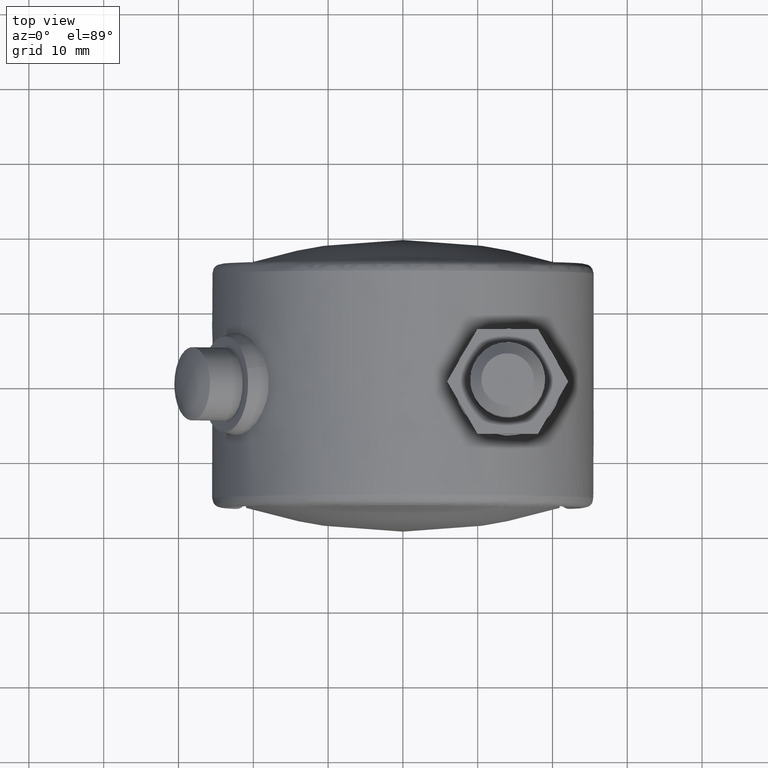
[diagram: clean part render]
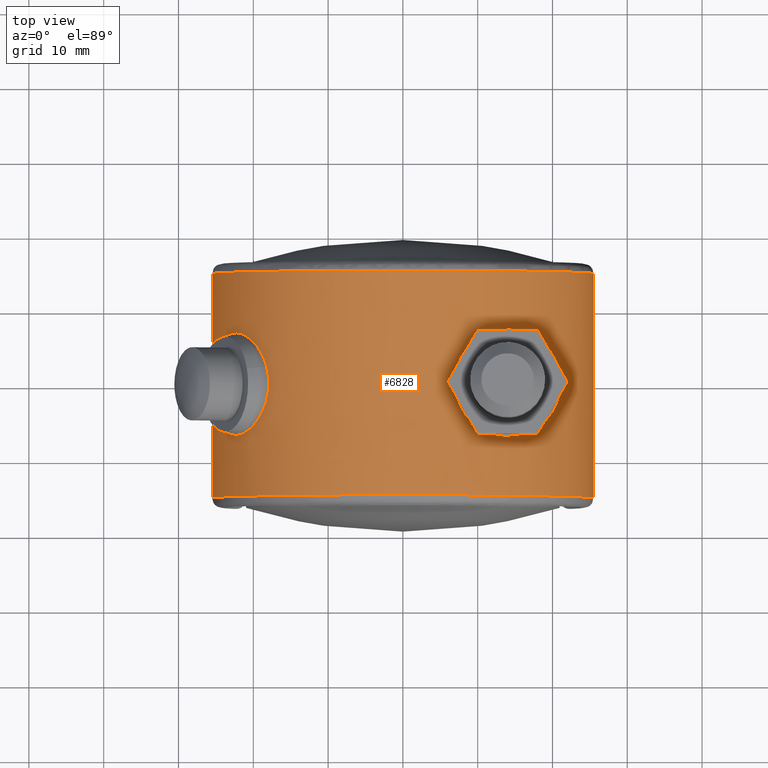
[diagram: same view with one face highlighted and labeled with its STEP entity id]
A machine part, top view. The second image highlights one B-rep face of the part: STEP entity #6828.
In plain terms, the highlighted face is a freeform B-spline surface patch.
Its self-contained STEP definition (entity closure, byte-faithful):
#1803=CARTESIAN_POINT('',(-23.429688962481048,6.424379821289016,10.064770474181209));
#1804=VERTEX_POINT('',#1803);
#1810=CARTESIAN_POINT('',(-24.275909214471358,-4.976083081121941,7.805785214233451));
#1811=VERTEX_POINT('',#1810);
#1812=CARTESIAN_POINT('',(-23.429688962481048,6.424379821289016,10.064770474181209));
#1813=CARTESIAN_POINT('',(-23.459658410534921,6.396591728323177,9.995002979690266));
#1814=CARTESIAN_POINT('',(-23.489153981638779,6.367558821583100,9.925479581294704));
#1815=CARTESIAN_POINT('',(-23.600783159508151,6.251157109759613,9.659117844686005));
#1816=CARTESIAN_POINT('',(-23.679619141808899,6.154913862298177,9.464055263180878));
#1817=CARTESIAN_POINT('',(-23.792505792184539,5.994829750330226,9.174815527523325));
#1818=CARTESIAN_POINT('',(-23.829085202921039,5.939047291176878,9.079352267200575));
#1819=CARTESIAN_POINT('',(-23.899834196795862,5.823346926742304,8.891449026403882));
#1820=CARTESIAN_POINT('',(-23.934072034916792,5.763333298578933,8.798834549932344));
#1821=CARTESIAN_POINT('',(-24.099878003214730,5.452562343857182,8.342460016417661));
#1822=CARTESIAN_POINT('',(-24.215407639162649,5.170030947772278,7.998564573216863));
#1823=CARTESIAN_POINT('',(-24.341998062714350,4.772969270604192,7.597636320900584));
#1824=CARTESIAN_POINT('',(-24.366418437678821,4.691340731351471,7.518912488587619));
#1825=CARTESIAN_POINT('',(-24.413527767339222,4.523522641886606,7.364513368212351));
#1826=CARTESIAN_POINT('',(-24.436134144103111,4.437602045297377,7.289103699364719));
#1827=CARTESIAN_POINT('',(-24.500802728489081,4.175707576433813,7.069919559953094));
#1828=CARTESIAN_POINT('',(-24.539931457355060,3.994881799229586,6.932493451971113));
#1829=CARTESIAN_POINT('',(-24.646761403326689,3.433756347294096,6.546625030904572));
#1830=CARTESIAN_POINT('',(-24.704026459268029,3.035023011096242,6.324288536244088));
#1831=CARTESIAN_POINT('',(-24.755175597733690,2.556140132745371,6.118149534795442));
#1832=CARTESIAN_POINT('',(-24.760677855065111,2.502439216750564,6.095838038673705));
#1833=CARTESIAN_POINT('',(-24.771250937396129,2.394815895630349,6.052729819289914));
#1834=CARTESIAN_POINT('',(-24.786484609285480,2.232862477363406,5.990254348427043));
#1835=CARTESIAN_POINT('',(-24.799903209880789,2.069364672072315,5.934305079080744));
#1836=CARTESIAN_POINT('',(-24.824454142288332,1.740324700388207,5.831072973475459));
#1837=CARTESIAN_POINT('',(-24.837783712710198,1.518243665561615,5.773787884856599));
#1838=CARTESIAN_POINT('',(-24.858812435146280,1.068601139110272,5.682568017915548));
#1839=CARTESIAN_POINT('',(-24.866511837152931,0.841040051839578,5.648631477753702));
#1840=CARTESIAN_POINT('',(-24.873912947553588,0.495441302079818,5.615917990850117));
#1841=CARTESIAN_POINT('',(-24.875685949040630,0.379530936565088,5.608050429543922));
#1842=CARTESIAN_POINT('',(-24.877821586584069,0.146247463409259,5.598569339746045));
#1843=CARTESIAN_POINT('',(-24.878173749943748,0.029998866677088,5.597002547065140));
#1844=CARTESIAN_POINT('',(-24.876446168560001,-0.549076750016756,5.604680269991946));
#1845=CARTESIAN_POINT('',(-24.864130885132489,-1.005725924521542,5.660053841443710));
#1846=CARTESIAN_POINT('',(-24.834192307873810,-1.568466763001454,5.789092216517544));
#1847=CARTESIAN_POINT('',(-24.827463203360480,-1.680607863580691,5.817915368335644));
#1848=CARTESIAN_POINT('',(-24.812442078903430,-1.904066412492347,5.881648623103835));
#1849=CARTESIAN_POINT('',(-24.804151963680351,-2.015265230971117,5.916547517446392));
#1850=CARTESIAN_POINT('',(-24.777144386065640,-2.343729320977677,6.029019068280090));
#1851=CARTESIAN_POINT('',(-24.756214686620151,-2.557190826843084,6.114704282677857));
#1852=CARTESIAN_POINT('',(-24.708088511040700,-2.973575074183206,6.306357385872415));
#1853=CARTESIAN_POINT('',(-24.680892202847840,-3.176496619659073,6.412327802092865));
#1854=CARTESIAN_POINT('',(-24.634867485221310,-3.473092052152275,6.586115941043913));
#1855=CARTESIAN_POINT('',(-24.618651940314692,-3.570656917159378,6.646521945638111));
#1856=CARTESIAN_POINT('',(-24.584355482265149,-3.763176129459104,6.772277755343726));
#1857=CARTESIAN_POINT('',(-24.566243837841920,-3.858257611155866,6.837732875184863));
#1858=CARTESIAN_POINT('',(-24.509420092651819,-4.137144096408198,7.039739831965543));
#1859=CARTESIAN_POINT('',(-24.468104194460981,-4.315367722770718,7.182375292870812));
#1860=CARTESIAN_POINT('',(-24.377909551834399,-4.656906038955346,7.482791502527109));
#1861=CARTESIAN_POINT('',(-24.328994550829471,-4.820329734891562,7.640690245199061));
#1862=CARTESIAN_POINT('',(-24.275909214471358,-4.976083081121941,7.805785214233451));
#1863=B_SPLINE_CURVE_WITH_KNOTS('',3,(#1812,#1813,#1814,#1815,#1816,#1817,#1818,#1819,#1820,#1821,#1822,#1823,#1824,#1825,#1826,#1827,#1828,#1829,#1830,#1831,#1832,#1833,#1834,#1835,#1836,#1837,#1838,#1839,#1840,#1841,#1842,#1843,#1844,#1845,#1846,#1847,#1848,#1849,#1850,#1851,#1852,#1853,#1854,#1855,#1856,#1857,#1858,#1859,#1860,#1861,#1862),.UNSPECIFIED.,.F.,.U.,(4,2,2,2,2,2,2,2,2,2,2,1,2,2,2,2,2,2,2,2,2,2,2,2,2,4),(0.682007803160957,0.687500000000000,0.703125000000000,0.710937500000000,0.718750000000000,0.750000000000000,0.757812500000000,0.765625000000000,0.781250000000000,0.812500000000000,0.816406250000000,0.820312500000000,0.828125000000000,0.843750000000000,0.859375000000000,0.867187500000000,0.875000000000000,0.906250000000000,0.914062500000000,0.921875000000000,0.937500000000000,0.953125000000000,0.960937500000000,0.968750000000000,0.984375000000000,1.0),.UNSPECIFIED.);
#1864=EDGE_CURVE('',#1804,#1811,#1863,.T.);
#1866=CARTESIAN_POINT('',(-18.221589848363990,2.253791840027597,17.838828378559501));
#1867=VERTEX_POINT('',#1866);
#1868=CARTESIAN_POINT('',(-24.275909214471358,-4.976083081121941,7.805785214233451));
#1869=CARTESIAN_POINT('',(-24.169738515435970,-5.287590108599481,8.135974858998672));
#1870=CARTESIAN_POINT('',(-24.049821469116260,-5.560386888827038,8.485818510908686));
#1871=CARTESIAN_POINT('',(-23.778251285969500,-6.034489698061430,9.219424297544109));
#1872=CARTESIAN_POINT('',(-23.626633617876980,-6.235766630623742,9.603218365883153));
#1873=CARTESIAN_POINT('',(-23.413113166114890,-6.440713993514998,10.103860550805161));
#1874=CARTESIAN_POINT('',(-23.369302414286832,-6.479230093794622,10.204796360164631));
#1875=CARTESIAN_POINT('',(-23.280207486046120,-6.550691326977140,10.406445003653840));
#1876=CARTESIAN_POINT('',(-23.234813392203289,-6.583744705483061,10.507417058684540));
#1877=CARTESIAN_POINT('',(-23.096050586353929,-6.674999361467436,10.810730253371540));
#1878=CARTESIAN_POINT('',(-22.904155342909370,-6.775627132846957,11.216200599691270));
#1879=CARTESIAN_POINT('',(-22.697989510521570,-6.834595543108673,11.623436092700800));
#1880=CARTESIAN_POINT('',(-22.537770049564259,-6.862919693225773,11.929464601652210));
#1881=CARTESIAN_POINT('',(-22.483430482360681,-6.869706134467100,12.031575102292960));
#1882=CARTESIAN_POINT('',(-22.372836762513010,-6.877864201326314,12.235996470984780));
#1883=CARTESIAN_POINT('',(-22.316611678302539,-6.879214070093094,12.338241765014070));
#1884=CARTESIAN_POINT('',(-22.033812648182838,-6.872362239939791,12.844301436273559));
#1885=CARTESIAN_POINT('',(-21.799757928046478,-6.823978496916994,13.237227643944070));
#1886=CARTESIAN_POINT('',(-21.438123587644281,-6.688519480401672,13.809692943401650));
#1887=CARTESIAN_POINT('',(-21.315822877577041,-6.632813539891016,13.997683649219720));
#1888=CARTESIAN_POINT('',(-21.129922558051121,-6.532931536965269,14.275453074606830));
#1889=CARTESIAN_POINT('',(-21.067590794631379,-6.496917934195854,14.367266907152610));
#1890=CARTESIAN_POINT('',(-20.943509611294260,-6.420218693539048,14.547547115436380));
#1891=CARTESIAN_POINT('',(-20.881593171047012,-6.379446762639232,14.636264813561111));
#1892=CARTESIAN_POINT('',(-20.572769709805740,-6.163651863270482,15.072953304752261));
#1893=CARTESIAN_POINT('',(-20.328051546415050,-5.953177814154089,15.400381297089980));
#1894=CARTESIAN_POINT('',(-20.028087026816941,-5.642023954717847,15.784004980029700));
#1895=CARTESIAN_POINT('',(-19.968396633647028,-5.577367682752254,15.859436946902770));
#1896=CARTESIAN_POINT('',(-19.849722779602750,-5.443090693783431,16.007719644687128));
#1897=CARTESIAN_POINT('',(-19.790811602942380,-5.373532869581110,16.080475161966110));
#1898=CARTESIAN_POINT('',(-19.617163999296629,-5.159616070831794,16.292630342384211));
#1899=CARTESIAN_POINT('',(-19.504881121553499,-5.009335053073978,16.426717162199999));
#1900=CARTESIAN_POINT('',(-19.179433795907791,-4.535702328005020,16.808047288038161));
#1901=CARTESIAN_POINT('',(-18.977509511150348,-4.189819882959684,17.034570827705171));
#1902=CARTESIAN_POINT('',(-18.749129539282531,-3.716864069216149,17.283635141369668));
#1903=CARTESIAN_POINT('',(-18.704664780688731,-3.620177324143554,17.331726945720721));
#1904=CARTESIAN_POINT('',(-18.619334065608079,-3.424935769146944,17.423364235836651));
#1905=CARTESIAN_POINT('',(-18.578329294654750,-3.326103538202716,17.467061894223530));
#1906=CARTESIAN_POINT('',(-18.460388605310101,-3.025992761603662,17.591942117878030));
#1907=CARTESIAN_POINT('',(-18.388515930863470,-2.821109062103542,17.666929350004771));
#1908=CARTESIAN_POINT('',(-18.259013336492490,-2.401612359175657,17.800738886768599));
#1909=CARTESIAN_POINT('',(-18.201381523590801,-2.187000236601702,17.859562076382961));
#1910=CARTESIAN_POINT('',(-18.126430864771329,-1.857480650388146,17.935521444865419));
#1911=CARTESIAN_POINT('',(-18.103366424457970,-1.746371497938315,17.958790821258329));
#1912=CARTESIAN_POINT('',(-18.061251901423280,-1.521532067409222,18.001144609917890));
#1913=CARTESIAN_POINT('',(-18.042218642108399,-1.407782403446504,18.020211823238231));
#1914=CARTESIAN_POINT('',(-17.958536811251669,-0.839871866337170,18.103839478487341));
#1915=CARTESIAN_POINT('',(-17.926941416714211,-0.382329429009383,18.134879947566841));
#1916=CARTESIAN_POINT('',(-17.932027017419848,0.193588933806537,18.129849782456262));
#1917=CARTESIAN_POINT('',(-17.935286090201849,0.308973835692931,18.126627193340230));
#1918=CARTESIAN_POINT('',(-17.946351080780971,0.540152404017588,18.115672110400311));
#1919=CARTESIAN_POINT('',(-17.954178835884310,0.656187839049175,18.107917987952369));
#1920=CARTESIAN_POINT('',(-17.984464487355080,1.003283464116293,18.077855707106011));
#1921=CARTESIAN_POINT('',(-18.013472462813318,1.231083178044428,18.049005901170940));
#1922=CARTESIAN_POINT('',(-18.095823303424972,1.726531486521329,17.966475994665331));
#1923=CARTESIAN_POINT('',(-18.152916109715790,1.992637169415661,17.908986603548598));
#1924=CARTESIAN_POINT('',(-18.221589848363990,2.253791840027597,17.838828378559501));
#1925=B_SPLINE_CURVE_WITH_KNOTS('',3,(#1868,#1869,#1870,#1871,#1872,#1873,#1874,#1875,#1876,#1877,#1878,#1879,#1880,#1881,#1882,#1883,#1884,#1885,#1886,#1887,#1888,#1889,#1890,#1891,#1892,#1893,#1894,#1895,#1896,#1897,#1898,#1899,#1900,#1901,#1902,#1903,#1904,#1905,#1906,#1907,#1908,#1909,#1910,#1911,#1912,#1913,#1914,#1915,#1916,#1917,#1918,#1919,#1920,#1921,#1922,#1923,#1924),.UNSPECIFIED.,.F.,.U.,(4,2,2,2,2,1,2,2,2,2,2,2,2,2,2,2,2,2,2,2,2,2,2,2,2,2,2,2,4),(0.0,0.031250000000000,0.062500000000000,0.070312500000000,0.078125000000000,0.093750000000000,0.109374999999999,0.117187499999999,0.124999999999999,0.156249999999998,0.171874999999998,0.179687499999997,0.187499999999997,0.218749999999996,0.226562499999996,0.234374999999996,0.249999999999996,0.281249999999996,0.289062499999996,0.296874999999996,0.312499999999996,0.328124999999997,0.335937499999997,0.343749999999997,0.374999999999997,0.382812499999997,0.390624999999998,0.406249999999998,0.425127977218299),.UNSPECIFIED.);
#1926=EDGE_CURVE('',#1811,#1867,#1925,.T.);
#1970=CARTESIAN_POINT('',(-19.479136916249050,4.969369741954024,16.456405318234719));
#1971=VERTEX_POINT('',#1970);
#1972=CARTESIAN_POINT('',(-18.221589848363990,2.253791840027597,17.838828378559501));
#1973=CARTESIAN_POINT('',(-18.266595944895322,2.424944959897824,17.792851049923112));
#1974=CARTESIAN_POINT('',(-18.316576134165238,2.593971586634766,17.741432373054650));
#1975=CARTESIAN_POINT('',(-18.440644394242941,2.971669672066545,17.612548785651949));
#1976=CARTESIAN_POINT('',(-18.516563149892079,3.175716811478333,17.532841590264422));
#1977=CARTESIAN_POINT('',(-18.680169654569021,3.570423572286235,17.358428982143511));
#1978=CARTESIAN_POINT('',(-18.767898141875360,3.761195301720114,17.263682538125849));
#1979=CARTESIAN_POINT('',(-18.954227314478960,4.129925372789270,17.058902264094570));
#1980=CARTESIAN_POINT('',(-19.052829428620679,4.307883397119123,16.948869118474789));
#1981=CARTESIAN_POINT('',(-19.208388691302289,4.565169932518758,16.771817571452740));
#1982=CARTESIAN_POINT('',(-19.261528999710109,4.649310011382639,16.710781456578829));
#1983=CARTESIAN_POINT('',(-19.369155042857820,4.812665319981917,16.585916153485972));
#1984=CARTESIAN_POINT('',(-19.423774893389801,4.892108650845137,16.521935358004281));
#1985=CARTESIAN_POINT('',(-19.479136916249050,4.969369741954024,16.456405318234719));
#1986=B_SPLINE_CURVE_WITH_KNOTS('',3,(#1972,#1973,#1974,#1975,#1976,#1977,#1978,#1979,#1980,#1981,#1982,#1983,#1984,#1985),.UNSPECIFIED.,.F.,.U.,(4,2,2,2,2,2,4),(0.425127977218299,0.437499999999998,0.453124999999998,0.468749999999999,0.484374999999999,0.492187499999999,0.499999999999999),.UNSPECIFIED.);
#1987=EDGE_CURVE('',#1867,#1971,#1986,.T.);
#1989=CARTESIAN_POINT('',(-19.479136916249050,4.969369741954024,16.456405318234719));
#1990=CARTESIAN_POINT('',(-19.700585895040660,5.278411851112748,16.194280141155570));
#1991=CARTESIAN_POINT('',(-19.933773823071459,5.552871944413348,15.907586156595301));
#1992=CARTESIAN_POINT('',(-20.236280356747319,5.853393667169932,15.516209970217030));
#1993=CARTESIAN_POINT('',(-20.297340769237540,5.911349662599516,15.436270421030359));
#1994=CARTESIAN_POINT('',(-20.420518598743641,6.022897700851953,15.272946754642550));
#1995=CARTESIAN_POINT('',(-20.482290140601499,6.076170679626174,15.190018350762740));
#1996=CARTESIAN_POINT('',(-20.667395962831129,6.228089902235163,14.938278009129910));
#1997=CARTESIAN_POINT('',(-20.790790186062399,6.319102700490776,14.766155853171270));
#1998=CARTESIAN_POINT('',(-21.160156523808130,6.562090899967267,14.236678055637540));
#1999=CARTESIAN_POINT('',(-21.405277598305219,6.684307619789104,13.866309106818131));
#2000=CARTESIAN_POINT('',(-21.708345311272261,6.785435384763323,13.379494120965180));
#2001=CARTESIAN_POINT('',(-21.768537185071779,6.802958921108377,13.281338636036370));
#2002=CARTESIAN_POINT('',(-21.887350775008152,6.832476854627116,13.084610696769580));
#2003=CARTESIAN_POINT('',(-21.946084114381222,6.844509194186942,12.985859414305180));
#2004=CARTESIAN_POINT('',(-22.120264724879320,6.872548296753341,12.688444741179209));
#2005=CARTESIAN_POINT('',(-22.347121117681510,6.888482437142264,12.288796851683870));
#2006=CARTESIAN_POINT('',(-22.563203184081249,6.861902838112187,11.882957777956070));
#2007=CARTESIAN_POINT('',(-22.721214236384188,6.825727689877612,11.576249735159671));
#2008=CARTESIAN_POINT('',(-22.773209417609639,6.810957867952816,11.473625527500699));
#2009=CARTESIAN_POINT('',(-22.875846713402769,6.775886221503037,11.267598690647009));
#2010=CARTESIAN_POINT('',(-22.926326577353670,6.755625001028510,11.164513335399720));
#2011=CARTESIAN_POINT('',(-23.138159732462711,6.657647613957104,10.724542972116950));
#2012=CARTESIAN_POINT('',(-23.289135827510201,6.554703604932036,10.391972266955390));
#2013=CARTESIAN_POINT('',(-23.429688962481048,6.424379821289016,10.064770474181209));
#2014=B_SPLINE_CURVE_WITH_KNOTS('',3,(#1989,#1990,#1991,#1992,#1993,#1994,#1995,#1996,#1997,#1998,#1999,#2000,#2001,#2002,#2003,#2004,#2005,#2006,#2007,#2008,#2009,#2010,#2011,#2012,#2013),.UNSPECIFIED.,.F.,.U.,(4,2,2,2,2,2,2,2,1,2,2,2,4),(0.499999999999999,0.531249999999999,0.539062499999999,0.546875000000000,0.562499999999999,0.593750000000000,0.601562500000000,0.609375000000000,0.625000000000000,0.640625000000000,0.648437500000000,0.656250000000000,0.682007803160957),.UNSPECIFIED.);
#2015=EDGE_CURVE('',#1971,#1804,#2014,.T.);
#3159=CARTESIAN_POINT('',(21.149960335271292,0.023207847857796,14.245323050617420));
#3160=VERTEX_POINT('',#3159);
#3161=CARTESIAN_POINT('',(12.508705340197031,6.992790438002766,22.221218547594781));
#3162=VERTEX_POINT('',#3161);
#3163=CARTESIAN_POINT('',(21.149960335271292,0.023207847857796,14.245323050617420));
#3164=CARTESIAN_POINT('',(21.149104123599361,0.287017959440957,14.246594386915740));
#3165=CARTESIAN_POINT('',(21.133698959672600,0.549050888198194,14.269534633982611));
#3166=CARTESIAN_POINT('',(21.089211927941719,0.939525876007728,14.335128307315779));
#3167=CARTESIAN_POINT('',(21.070690764501499,1.069806224050145,14.362364916984330));
#3168=CARTESIAN_POINT('',(21.027443096369439,1.324460703180360,14.425608378138021));
#3169=CARTESIAN_POINT('',(21.002689919832591,1.449352957028371,14.461654668765400));
#3170=CARTESIAN_POINT('',(20.919732758599501,1.817426730366610,14.581643317118880));
#3171=CARTESIAN_POINT('',(20.852875688533299,2.054038066967454,14.677377513520319));
#3172=CARTESIAN_POINT('',(20.756320717246510,2.340566417047053,14.813046786252970));
#3173=CARTESIAN_POINT('',(20.736356914880350,2.397407638602883,14.840985397918070));
#3174=CARTESIAN_POINT('',(20.695146705689201,2.510194541060173,14.898397611115850));
#3175=CARTESIAN_POINT('',(20.673873197619660,2.566203350830488,14.927908246822160));
#3176=CARTESIAN_POINT('',(20.608590380307650,2.731864134707391,15.018042921379090));
#3177=CARTESIAN_POINT('',(20.563010159716669,2.839481665966098,15.080421698231930));
#3178=CARTESIAN_POINT('',(20.420506791415399,3.154798606661319,15.273460869621470));
#3179=CARTESIAN_POINT('',(20.317848651878659,3.355010209136695,15.409979764448870));
#3180=CARTESIAN_POINT('',(20.098531802754550,3.738877061145479,15.694950814301990));
#3181=CARTESIAN_POINT('',(19.981861770756339,3.922511534081215,15.843422774461621));
#3182=CARTESIAN_POINT('',(19.796738384147670,4.187101528070159,16.073237829322089));
#3183=CARTESIAN_POINT('',(19.733339196223721,4.273479519967912,16.151035027317921));
#3184=CARTESIAN_POINT('',(19.603171668132990,4.442776583795710,16.308779059509671));
#3185=CARTESIAN_POINT('',(19.536585136101170,4.525447677935953,16.388502251425621));
#3186=CARTESIAN_POINT('',(19.333335273768071,4.766776194127711,16.628780317539711));
#3187=CARTESIAN_POINT('',(19.192811289484290,4.919273903724057,16.790891451464312));
#3188=CARTESIAN_POINT('',(18.756414271236640,5.354210762477464,17.281162653516901));
#3189=CARTESIAN_POINT('',(18.445820080311229,5.614349172920956,17.613155473527570));
#3190=CARTESIAN_POINT('',(17.949150521651710,5.963846187098417,18.114456610913500));
#3191=CARTESIAN_POINT('',(17.778436853547522,6.073487707017863,18.282140617145881));
#3192=CARTESIAN_POINT('',(17.514221240760410,6.227590279882850,18.534214103440160));
#3193=CARTESIAN_POINT('',(17.424672574281839,6.277288886778310,18.618439703697891));
#3194=CARTESIAN_POINT('',(17.243302609996480,6.372888842022149,18.786538535180771));
#3195=CARTESIAN_POINT('',(17.151726582158311,6.418667761196316,18.870187685929629));
#3196=CARTESIAN_POINT('',(16.689353136507620,6.637547683521904,19.286352636631349));
#3197=CARTESIAN_POINT('',(16.305132332295269,6.780876788012546,19.612600711612711));
#3198=CARTESIAN_POINT('',(15.506187052963940,7.001804725507280,20.250175788375309));
#3199=CARTESIAN_POINT('',(15.091484702397990,7.079457336377649,20.561511461662668));
#3200=CARTESIAN_POINT('',(14.551817653420439,7.129465285186949,20.940684382472231));
#3201=CARTESIAN_POINT('',(14.442565807701641,7.137101523549014,21.016187684264981));
#3202=CARTESIAN_POINT('',(14.223161629736460,7.147326015887174,21.165290595421581));
#3203=CARTESIAN_POINT('',(14.113132993113290,7.149921713757729,21.238812829275229));
#3204=CARTESIAN_POINT('',(13.782098536737241,7.150049585781403,21.456321958818510));
#3205=CARTESIAN_POINT('',(13.560143044688759,7.139938269820852,21.597252480995159));
#3206=CARTESIAN_POINT('',(13.062614934028341,7.093603598126934,21.902556975475338));
#3207=CARTESIAN_POINT('',(12.786430226415741,7.052050041223169,22.064882508181999));
#3208=CARTESIAN_POINT('',(12.508705340197031,6.992790438002766,22.221218547594781));
#3209=B_SPLINE_CURVE_WITH_KNOTS('',3,(#3163,#3164,#3165,#3166,#3167,#3168,#3169,#3170,#3171,#3172,#3173,#3174,#3175,#3176,#3177,#3178,#3179,#3180,#3181,#3182,#3183,#3184,#3185,#3186,#3187,#3188,#3189,#3190,#3191,#3192,#3193,#3194,#3195,#3196,#3197,#3198,#3199,#3200,#3201,#3202,#3203,#3204,#3205,#3206,#3207,#3208),.UNSPECIFIED.,.F.,.U.,(4,2,2,2,2,2,2,2,2,2,2,2,2,2,2,2,2,2,2,2,2,2,4),(0.500000000000005,0.515625000000005,0.523437500000005,0.531250000000005,0.546875000000005,0.550781250000005,0.554687500000005,0.562500000000004,0.578125000000004,0.593750000000004,0.601562500000004,0.609375000000004,0.625000000000004,0.656250000000003,0.671875000000003,0.679687500000003,0.687500000000003,0.718750000000002,0.750000000000002,0.757812500000002,0.765625000000002,0.781250000000002,0.800465667727664),.UNSPECIFIED.);
#3210=EDGE_CURVE('',#3160,#3162,#3209,.T.);
#3253=CARTESIAN_POINT('',(13.812833964466209,-7.147551247231823,21.434912303470359));
#3254=VERTEX_POINT('',#3253);
#3260=CARTESIAN_POINT('',(13.812833964466209,-7.147551247231823,21.434912303470359));
#3261=CARTESIAN_POINT('',(13.879564093735871,-7.149297579565451,21.391910844670800));
#3262=CARTESIAN_POINT('',(13.946206889438679,-7.150106024011182,21.348524634424940));
#3263=CARTESIAN_POINT('',(14.123819883928849,-7.149788986288479,21.231703429481421));
#3264=CARTESIAN_POINT('',(14.234220950664360,-7.147000091444477,21.157842623579430));
#3265=CARTESIAN_POINT('',(14.452975349418161,-7.136475440226098,21.009018487599569));
#3266=CARTESIAN_POINT('',(14.561450618407390,-7.128739635039132,20.933975109384829));
#3267=CARTESIAN_POINT('',(15.099425353800431,-7.078177751451846,20.555633221909499));
#3268=CARTESIAN_POINT('',(15.515769855696419,-7.000010579780258,20.242954655599600));
#3269=CARTESIAN_POINT('',(16.019834294433760,-6.859569287461570,19.840147334097210));
#3270=CARTESIAN_POINT('',(16.119825911033001,-6.829325873703750,19.758988279724189));
#3271=CARTESIAN_POINT('',(16.318184935374308,-6.764567363835942,19.595490550813729));
#3272=CARTESIAN_POINT('',(16.416683892080300,-6.729997418624371,19.513037218637120));
#3273=CARTESIAN_POINT('',(16.707989590281478,-6.620596162026386,19.265459758931701));
#3274=CARTESIAN_POINT('',(16.897072412151129,-6.539964655266468,19.099749721097119));
#3275=CARTESIAN_POINT('',(17.449882513565161,-6.275952195246130,18.601018419383578));
#3276=CARTESIAN_POINT('',(17.799249343443059,-6.070684772791431,18.266335789204160));
#3277=CARTESIAN_POINT('',(18.296642839735618,-5.718617407743678,17.763400380792330));
#3278=CARTESIAN_POINT('',(18.457977941786488,-5.593845342704544,17.595616281043810));
#3279=CARTESIAN_POINT('',(18.693365095069979,-5.394936495276742,17.344198766712310));
#3280=CARTESIAN_POINT('',(18.770758982048392,-5.326626396655107,17.260394494019270));
#3281=CARTESIAN_POINT('',(18.922339005083639,-5.186874663339273,17.094083827122969));
#3282=CARTESIAN_POINT('',(18.996653958208761,-5.115328687257700,17.011441475840460));
#3283=CARTESIAN_POINT('',(19.215233351320059,-4.895559690687046,16.765230355410701));
#3284=CARTESIAN_POINT('',(19.355143172792140,-4.742227996329230,16.603363129780121));
#3285=CARTESIAN_POINT('',(19.623415199778449,-4.420801581198323,16.285417373659740));
#3286=CARTESIAN_POINT('',(19.751780881348729,-4.252717046968743,16.129331071241289));
#3287=CARTESIAN_POINT('',(19.996653000338249,-3.899838319071729,15.824728941624260));
#3288=CARTESIAN_POINT('',(20.113167431783801,-3.715064595770151,15.676198344696250));
#3289=CARTESIAN_POINT('',(20.278400458949061,-3.422961755356366,15.461068921712300));
#3290=CARTESIAN_POINT('',(20.331888365813501,-3.323043044081778,15.390633686535709));
#3291=CARTESIAN_POINT('',(20.434469484185239,-3.119780148480052,15.254171585501730));
#3292=CARTESIAN_POINT('',(20.483700946347700,-3.016202307962312,15.187966017790901));
#3293=CARTESIAN_POINT('',(20.625001778220579,-2.699142570350777,14.996150954235439));
#3294=CARTESIAN_POINT('',(20.710722227123512,-2.479389803032653,14.877275338807850));
#3295=CARTESIAN_POINT('',(20.825055160489661,-2.134423754247178,14.716366123186191));
#3296=CARTESIAN_POINT('',(20.860781610869779,-2.016866608505639,14.665645513022660));
#3297=CARTESIAN_POINT('',(20.927051904862228,-1.775958211356669,14.570925498410590));
#3298=CARTESIAN_POINT('',(20.957223990618839,-1.653933438371559,14.527458981266340));
#3299=CARTESIAN_POINT('',(21.038428962281259,-1.283338656747133,14.409844648925841));
#3300=CARTESIAN_POINT('',(21.080258645130758,-1.030063171049270,14.348353969809700));
#3301=CARTESIAN_POINT('',(21.115505334819279,-0.704516193804174,14.296350451674581));
#3302=CARTESIAN_POINT('',(21.121698619785398,-0.638957585119462,14.287196431736890));
#3303=CARTESIAN_POINT('',(21.132314146520169,-0.506905460789576,14.271490274641060));
#3304=CARTESIAN_POINT('',(21.136740784300510,-0.440253353493311,14.264931627989769));
#3305=CARTESIAN_POINT('',(21.147170945291549,-0.241047237913219,14.249468911759310));
#3306=CARTESIAN_POINT('',(21.150388469521541,-0.108697393824813,14.244687361898110));
#3307=CARTESIAN_POINT('',(21.149960335271292,0.023207847857796,14.245323050617420));
#3308=B_SPLINE_CURVE_WITH_KNOTS('',3,(#3260,#3261,#3262,#3263,#3264,#3265,#3266,#3267,#3268,#3269,#3270,#3271,#3272,#3273,#3274,#3275,#3276,#3277,#3278,#3279,#3280,#3281,#3282,#3283,#3284,#3285,#3286,#3287,#3288,#3289,#3290,#3291,#3292,#3293,#3294,#3295,#3296,#3297,#3298,#3299,#3300,#3301,#3302,#3303,#3304,#3305,#3306,#3307),.UNSPECIFIED.,.F.,.U.,(4,2,2,2,2,2,2,2,2,2,2,2,2,2,2,2,2,2,2,2,2,2,2,4),(0.229693405197819,0.234375000000005,0.242187500000005,0.250000000000005,0.281250000000006,0.289062500000006,0.296875000000006,0.312500000000006,0.343750000000006,0.359375000000006,0.367187500000006,0.375000000000006,0.390625000000006,0.406250000000006,0.421875000000006,0.429687500000006,0.437500000000006,0.453125000000006,0.460937500000006,0.468750000000006,0.484375000000006,0.488281250000005,0.492187500000005,0.500000000000005),.UNSPECIFIED.);
#3309=EDGE_CURVE('',#3254,#3160,#3308,.T.);
#3332=CARTESIAN_POINT('',(6.849998000000170,2.846031E-015,24.562727421847800));
#3333=VERTEX_POINT('',#3332);
#3334=CARTESIAN_POINT('',(12.508705340197031,6.992790438002766,22.221218547594781));
#3335=CARTESIAN_POINT('',(12.334772376717360,6.955678597460391,22.319128225836341));
#3336=CARTESIAN_POINT('',(12.160235318069740,6.911622046734310,22.414688687164830));
#3337=CARTESIAN_POINT('',(11.871493683804619,6.826819871343022,22.568439370884519));
#3338=CARTESIAN_POINT('',(11.758090039161001,6.790433113073537,22.627715324278860));
#3339=CARTESIAN_POINT('',(11.533383411013450,6.712075798744737,22.743070178429718));
#3340=CARTESIAN_POINT('',(11.421847707472230,6.670038113929322,22.799273374311671));
#3341=CARTESIAN_POINT('',(11.089801380850099,6.535277601743353,22.963612934683461));
#3342=CARTESIAN_POINT('',(10.871844010190310,6.433925300450068,23.067483406035819));
#3343=CARTESIAN_POINT('',(10.443483334681980,6.207413510891499,23.264552946380260));
#3344=CARTESIAN_POINT('',(10.233077343698421,6.082258853467321,23.357751699507489));
#3345=CARTESIAN_POINT('',(9.923890806831587,5.875614366831273,23.489979217836421));
#3346=CARTESIAN_POINT('',(9.821901401072704,5.803575429428927,23.532792316866480));
#3347=CARTESIAN_POINT('',(9.670646967184814,5.690591582914615,23.595163081597160));
#3348=CARTESIAN_POINT('',(9.620517300563479,5.652108959630929,23.615645125852961));
#3349=CARTESIAN_POINT('',(9.520857636374091,5.573463789896215,23.655999543045670));
#3350=CARTESIAN_POINT('',(9.471375080101529,5.533334200266108,23.675852003332960));
#3351=CARTESIAN_POINT('',(9.227231622207864,5.329872506214180,23.772936742319210));
#3352=CARTESIAN_POINT('',(9.041004484735709,5.157065033482090,23.844202788202161));
#3353=CARTESIAN_POINT('',(8.687027300251083,4.791588260105582,23.975431461971120));
#3354=CARTESIAN_POINT('',(8.519274991161900,4.598920360122535,24.035392250496798));
#3355=CARTESIAN_POINT('',(8.203080929278013,4.193349826839416,24.145135740440239));
#3356=CARTESIAN_POINT('',(8.054633416020851,3.980452255323477,24.194918431738799));
#3357=CARTESIAN_POINT('',(7.882068240336704,3.701027246783743,24.251276643945861));
#3358=CARTESIAN_POINT('',(7.848247810640906,3.644534989029886,24.262240269433729));
#3359=CARTESIAN_POINT('',(7.782373512772381,3.530979981889709,24.283450266850430));
#3360=CARTESIAN_POINT('',(7.686045907923679,3.359524200802833,24.314243417025882));
#3361=CARTESIAN_POINT('',(7.597115089177953,3.184735277484661,24.342090547444890));
#3362=CARTESIAN_POINT('',(7.429048632722894,2.830772534193510,24.394119744185971));
#3363=CARTESIAN_POINT('',(7.330036806145595,2.588964079540963,24.423936088157049));
#3364=CARTESIAN_POINT('',(7.158385438229742,2.093675791243657,24.474795291011802));
#3365=CARTESIAN_POINT('',(7.085740939330742,1.840197961719548,24.495838253003431));
#3366=CARTESIAN_POINT('',(6.997491575867930,1.450889323175340,24.521136067707911));
#3367=CARTESIAN_POINT('',(6.971701591865100,1.320278720820707,24.528472595442580));
#3368=CARTESIAN_POINT('',(6.927548154112212,1.058558768578169,24.540979292108471));
#3369=CARTESIAN_POINT('',(6.909142415796709,0.927265292524458,24.546161530593590));
#3370=CARTESIAN_POINT('',(6.864898318366798,0.532091529193482,24.558586395720550));
#3371=CARTESIAN_POINT('',(6.849998180146605,0.266710983841963,24.562727421848709));
#3372=CARTESIAN_POINT('',(6.849998000000170,2.846031E-015,24.562727421847800));
#3373=B_SPLINE_CURVE_WITH_KNOTS('',3,(#3334,#3335,#3336,#3337,#3338,#3339,#3340,#3341,#3342,#3343,#3344,#3345,#3346,#3347,#3348,#3349,#3350,#3351,#3352,#3353,#3354,#3355,#3356,#3357,#3358,#3359,#3360,#3361,#3362,#3363,#3364,#3365,#3366,#3367,#3368,#3369,#3370,#3371,#3372),.UNSPECIFIED.,.F.,.U.,(4,2,2,2,2,2,2,2,2,2,2,2,2,1,2,2,2,2,2,4),(0.800465667727664,0.812500000000002,0.820312500000002,0.828125000000002,0.843750000000002,0.859375000000002,0.867187500000002,0.871093750000002,0.875000000000002,0.890625000000002,0.906250000000001,0.921875000000001,0.925781250000001,0.929687500000001,0.937500000000001,0.953125000000001,0.968750000000001,0.976562500000000,0.984375000000000,1.0),.UNSPECIFIED.);
#3374=EDGE_CURVE('',#3162,#3333,#3373,.T.);
#3376=CARTESIAN_POINT('',(6.849998000000170,2.846031E-015,24.562727421847800));
#3377=CARTESIAN_POINT('',(6.849997961980424,-0.266711803700668,24.562727361856680));
#3378=CARTESIAN_POINT('',(6.864872290741703,-0.530792198379237,24.558592995155671));
#3379=CARTESIAN_POINT('',(6.923199463759797,-1.053889335720373,24.542213897880909));
#3380=CARTESIAN_POINT('',(6.966656414343750,-1.312905354188445,24.529968073827309));
#3381=CARTESIAN_POINT('',(7.053211111590351,-1.697625718687614,24.505165572665039));
#3382=CARTESIAN_POINT('',(7.085632186202161,-1.825230368879354,24.495821043266631));
#3383=CARTESIAN_POINT('',(7.139682083140752,-2.015669491297788,24.480100333873100));
#3384=CARTESIAN_POINT('',(7.158602276629856,-2.078987790635174,24.474575789101870));
#3385=CARTESIAN_POINT('',(7.198266820826441,-2.205297898564090,24.462939299125900));
#3386=CARTESIAN_POINT('',(7.219045798672448,-2.268388204694569,24.456817082283418));
#3387=CARTESIAN_POINT('',(7.327097872738962,-2.581706460689295,24.424818824100189));
#3388=CARTESIAN_POINT('',(7.426484044731277,-2.824801716450449,24.394897226759671));
#3389=CARTESIAN_POINT('',(7.649872806824970,-3.296437597999729,24.325770541847980));
#3390=CARTESIAN_POINT('',(7.773880410577739,-3.524975622345827,24.286565716368379));
#3391=CARTESIAN_POINT('',(7.978052122794813,-3.856882818032615,24.219946180801522));
#3392=CARTESIAN_POINT('',(8.049142289619432,-3.965697979611623,24.196433749316508));
#3393=CARTESIAN_POINT('',(8.160343232279217,-4.126157052345590,24.159062582279500));
#3394=CARTESIAN_POINT('',(8.198171539763777,-4.179182552756111,24.146254832740500));
#3395=CARTESIAN_POINT('',(8.275358121869150,-4.284303359725626,24.119910538931080));
#3396=CARTESIAN_POINT('',(8.314760980871922,-4.336452132898137,24.106358238685988));
#3397=CARTESIAN_POINT('',(8.514375463813586,-4.593273799767287,24.037136771494719));
#3398=CARTESIAN_POINT('',(8.683161672351787,-4.787351066261072,23.976829994098210));
#3399=CARTESIAN_POINT('',(9.037568596389093,-5.153811443461974,23.845503067458289));
#3400=CARTESIAN_POINT('',(9.223194046175514,-5.326189788460522,23.774483276282201));
#3401=CARTESIAN_POINT('',(9.513658657765353,-5.568767742811575,23.659059371463730));
#3402=CARTESIAN_POINT('',(9.612488405561427,-5.646957278277138,23.619100064945659));
#3403=CARTESIAN_POINT('',(9.814105953360039,-5.797988791240979,23.536039179263931));
#3404=CARTESIAN_POINT('',(9.917199452549861,-5.871025016561184,23.492804877083881));
#3405=CARTESIAN_POINT('',(10.229301603625430,-6.080054266693781,23.359420080398920));
#3406=CARTESIAN_POINT('',(10.441427321420329,-6.206334251078361,23.265486279814031));
#3407=CARTESIAN_POINT('',(10.872715743724539,-6.434447443035776,23.067082573402889));
#3408=CARTESIAN_POINT('',(11.091881504191511,-6.536274580211555,22.962612821066280));
#3409=CARTESIAN_POINT('',(11.425317566020560,-6.671423958983310,22.797530349000720));
#3410=CARTESIAN_POINT('',(11.537246089633710,-6.713537022584174,22.741105605695989));
#3411=CARTESIAN_POINT('',(11.762591170025580,-6.791961119021361,22.625370176084719));
#3412=CARTESIAN_POINT('',(11.876290100180981,-6.828348605231955,22.565906864040500));
#3413=CARTESIAN_POINT('',(12.443792678941071,-6.994606667471496,22.263569152443502));
#3414=CARTESIAN_POINT('',(12.895446523792920,-7.078481553490899,22.005311923366548));
#3415=CARTESIAN_POINT('',(13.500388464612669,-7.134262383102258,21.633845237909089));
#3416=CARTESIAN_POINT('',(13.656849813486900,-7.143469163964985,21.535429927680450));
#3417=CARTESIAN_POINT('',(13.812833964466209,-7.147551247231823,21.434912303470359));
#3418=B_SPLINE_CURVE_WITH_KNOTS('',3,(#3376,#3377,#3378,#3379,#3380,#3381,#3382,#3383,#3384,#3385,#3386,#3387,#3388,#3389,#3390,#3391,#3392,#3393,#3394,#3395,#3396,#3397,#3398,#3399,#3400,#3401,#3402,#3403,#3404,#3405,#3406,#3407,#3408,#3409,#3410,#3411,#3412,#3413,#3414,#3415,#3416,#3417),.UNSPECIFIED.,.F.,.U.,(4,2,2,2,2,2,2,2,2,2,2,2,2,2,2,2,2,2,2,2,4),(0.0,0.015625000000000,0.031250000000001,0.039062500000001,0.042968750000001,0.046875000000001,0.062500000000001,0.078125000000002,0.085937500000002,0.089843750000002,0.093750000000002,0.109375000000003,0.125000000000003,0.132812500000003,0.140625000000003,0.156250000000004,0.171875000000004,0.179687500000004,0.187500000000005,0.218750000000005,0.229693405197819),.UNSPECIFIED.);
#3419=EDGE_CURVE('',#3333,#3254,#3418,.T.);
#5188=CARTESIAN_POINT('',(23.914548033457500,15.0,-8.851239650775209));
#5189=VERTEX_POINT('',#5188);
#5190=CARTESIAN_POINT('',(-23.914548033457500,15.0,-8.851239650775209));
#5191=VERTEX_POINT('',#5190);
#5192=CARTESIAN_POINT('',(23.914548033457489,15.0,-8.851239650775225));
#5193=CARTESIAN_POINT('',(30.528935571366613,15.000000000000002,9.019713427913166));
#5194=CARTESIAN_POINT('',(15.264467785683300,15.0,20.426602121249580));
#5195=CARTESIAN_POINT('',(-6.938894E-015,15.000000000000002,31.833490814585996));
#5196=CARTESIAN_POINT('',(-15.264467785683310,15.0,20.426602121249569));
#5197=CARTESIAN_POINT('',(-30.528935571366606,15.000000000000002,9.019713427913166));
#5198=CARTESIAN_POINT('',(-23.914548033457489,15.0,-8.851239650775215));
#5206=(BOUNDED_CURVE()B_SPLINE_CURVE(2,(#5192,#5193,#5194,#5195,#5196,#5197,#5198),.UNSPECIFIED.,.F.,.U.)B_SPLINE_CURVE_WITH_KNOTS((3,2,2,3),(0.0,0.333333333333333,0.666666666666667,1.0),.UNSPECIFIED.)CURVE()GEOMETRIC_REPRESENTATION_ITEM()RATIONAL_B_SPLINE_CURVE((1.0,0.801043189027701,1.0,0.801043189027701,1.0,0.801043189027701,1.0))REPRESENTATION_ITEM(''));
#5207=EDGE_CURVE('',#5189,#5191,#5206,.T.);
#5510=CARTESIAN_POINT('',(23.914548033457500,-15.0,-8.851239650775209));
#5511=VERTEX_POINT('',#5510);
#5543=CARTESIAN_POINT('',(23.914548033457500,-15.0,-8.851239650775209));
#5544=CARTESIAN_POINT('',(23.914548033457500,15.0,-8.851239650775209));
#5545=QUASI_UNIFORM_CURVE('',1,(#5543,#5544),.UNSPECIFIED.,.F.,.U.);
#5546=EDGE_CURVE('',#5511,#5189,#5545,.T.);
#5567=CARTESIAN_POINT('',(-23.914548033457500,-15.0,-8.851239650775209));
#5568=VERTEX_POINT('',#5567);
#5592=CARTESIAN_POINT('',(-23.914548033457500,15.0,-8.851239650775209));
#5593=CARTESIAN_POINT('',(-23.914548033457500,-15.0,-8.851239650775209));
#5594=QUASI_UNIFORM_CURVE('',1,(#5592,#5593),.UNSPECIFIED.,.F.,.U.);
#5595=EDGE_CURVE('',#5191,#5568,#5594,.T.);
#5850=CARTESIAN_POINT('',(-23.914548033457489,-15.0,-8.851239650775225));
#5851=CARTESIAN_POINT('',(-30.528935571366613,-15.000000000000002,9.019713427913166));
#5852=CARTESIAN_POINT('',(-15.264467785683300,-15.0,20.426602121249580));
#5853=CARTESIAN_POINT('',(6.938894E-015,-15.000000000000002,31.833490814585996));
#5854=CARTESIAN_POINT('',(15.264467785683310,-15.0,20.426602121249569));
#5855=CARTESIAN_POINT('',(30.528935571366606,-15.000000000000002,9.019713427913166));
#5856=CARTESIAN_POINT('',(23.914548033457489,-15.0,-8.851239650775215));
#5864=(BOUNDED_CURVE()B_SPLINE_CURVE(2,(#5850,#5851,#5852,#5853,#5854,#5855,#5856),.UNSPECIFIED.,.F.,.U.)B_SPLINE_CURVE_WITH_KNOTS((3,2,2,3),(0.0,0.333333333333333,0.666666666666667,1.0),.UNSPECIFIED.)CURVE()GEOMETRIC_REPRESENTATION_ITEM()RATIONAL_B_SPLINE_CURVE((1.0,0.801043189027701,1.0,0.801043189027701,1.0,0.801043189027701,1.0))REPRESENTATION_ITEM(''));
#5865=EDGE_CURVE('',#5568,#5511,#5864,.T.);
#6788=CARTESIAN_POINT('',(-23.611465118448510,15.750000000000000,-9.630616073766511));
#6789=CARTESIAN_POINT('',(-23.611465118448510,-15.768750000000001,-9.630616073766511));
#6790=CARTESIAN_POINT('',(-31.090714728264231,15.750000000000000,8.706325189562996));
#6791=CARTESIAN_POINT('',(-31.090714728264231,-15.768749999999997,8.706325189562996));
#6792=CARTESIAN_POINT('',(-15.176151557948071,15.750000000000000,20.492302820576100));
#6793=CARTESIAN_POINT('',(-15.176151557948071,-15.768750000000001,20.492302820576100));
#6794=CARTESIAN_POINT('',(0.738411612368097,15.750000000000000,32.278280451589197));
#6795=CARTESIAN_POINT('',(0.738411612368097,-15.768749999999997,32.278280451589197));
#6796=CARTESIAN_POINT('',(16.097366358581009,15.750000000000000,19.776876581442909));
#6797=CARTESIAN_POINT('',(16.097366358581009,-15.768750000000001,19.776876581442909));
#6798=CARTESIAN_POINT('',(31.456321104793926,15.750000000000000,7.275472711296619));
#6799=CARTESIAN_POINT('',(31.456321104793926,-15.768749999999997,7.275472711296619));
#6800=CARTESIAN_POINT('',(23.146367203876999,15.750000000000000,-10.700268046328929));
#6801=CARTESIAN_POINT('',(23.146367203876999,-15.768750000000001,-10.700268046328929));
#6809=(BOUNDED_SURFACE()B_SPLINE_SURFACE(1,2,((#6788,#6790,#6792,#6794,#6796,#6798,#6800),(#6789,#6791,#6793,#6795,#6797,#6799,#6801)),.UNSPECIFIED.,.F.,.F.,.U.)B_SPLINE_SURFACE_WITH_KNOTS((2,2),(3,2,2,3),(0.0,31.518750000000001),(0.0,34.955558932481011,69.911117864962023,104.866676797443010),.UNSPECIFIED.)GEOMETRIC_REPRESENTATION_ITEM()RATIONAL_B_SPLINE_SURFACE(((1.0,0.789798303806543,1.0,0.789798303806543,1.0,0.789798303806543,1.0),(1.0,0.789798303806543,1.0,0.789798303806543,1.0,0.789798303806543,1.0)))REPRESENTATION_ITEM('')SURFACE());
#6810=ORIENTED_EDGE('',*,*,#5546,.T.);
#6811=ORIENTED_EDGE('',*,*,#5207,.T.);
#6812=ORIENTED_EDGE('',*,*,#5595,.T.);
#6813=ORIENTED_EDGE('',*,*,#5865,.T.);
#6814=EDGE_LOOP('',(#6810,#6811,#6812,#6813));
#6815=FACE_OUTER_BOUND('',#6814,.T.);
#6816=ORIENTED_EDGE('',*,*,#3419,.F.);
#6817=ORIENTED_EDGE('',*,*,#3374,.F.);
#6818=ORIENTED_EDGE('',*,*,#3210,.F.);
#6819=ORIENTED_EDGE('',*,*,#3309,.F.);
#6820=EDGE_LOOP('',(#6816,#6817,#6818,#6819));
#6821=FACE_BOUND('',#6820,.T.);
#6822=ORIENTED_EDGE('',*,*,#2015,.F.);
#6823=ORIENTED_EDGE('',*,*,#1987,.F.);
#6824=ORIENTED_EDGE('',*,*,#1926,.F.);
#6825=ORIENTED_EDGE('',*,*,#1864,.F.);
#6826=EDGE_LOOP('',(#6822,#6823,#6824,#6825));
#6827=FACE_BOUND('',#6826,.T.);
#6828=ADVANCED_FACE('',(#6815,#6821,#6827),#6809,.T.);